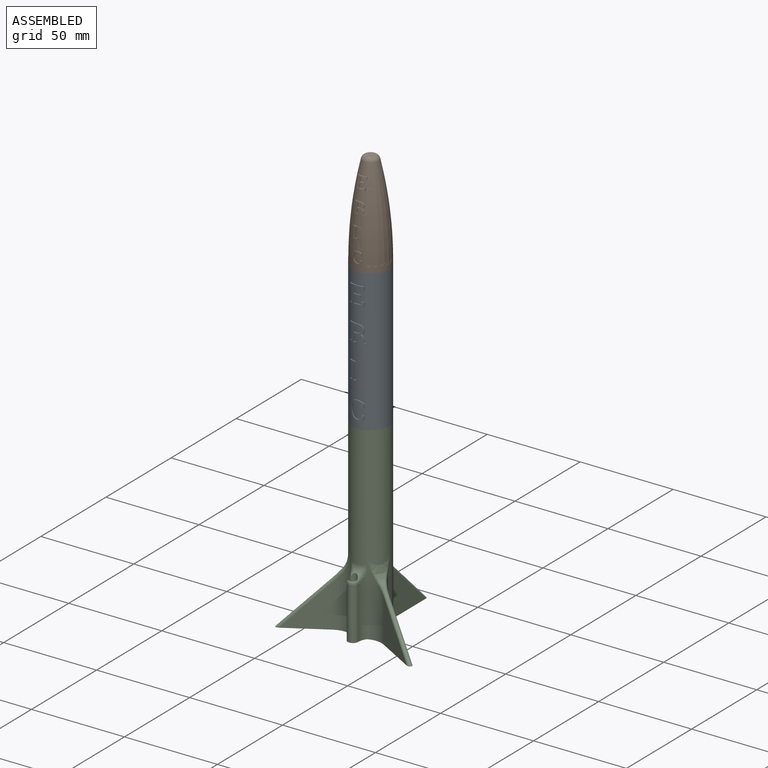
[diagram: assembled view]
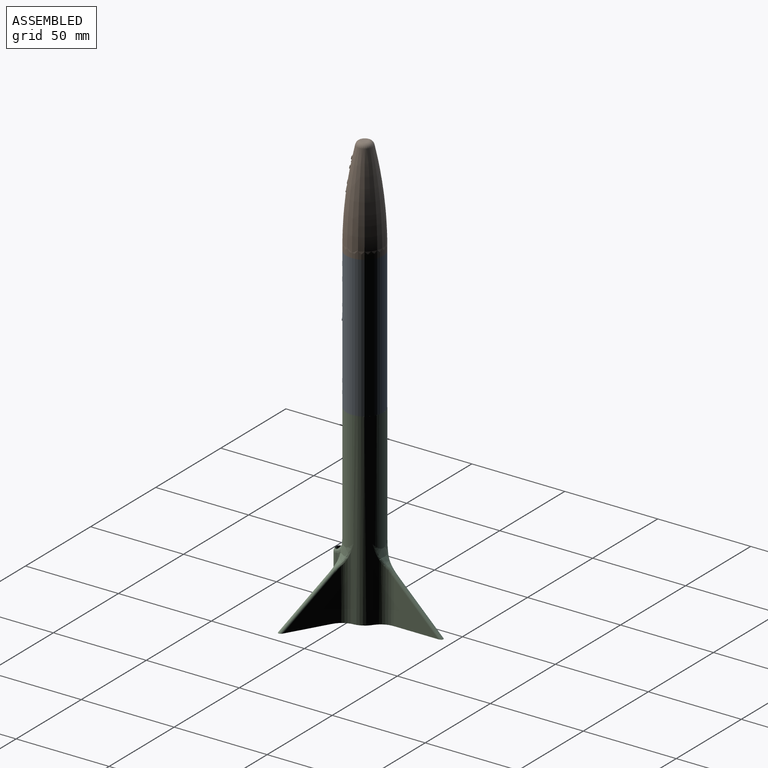
[diagram: assembled view, second angle]
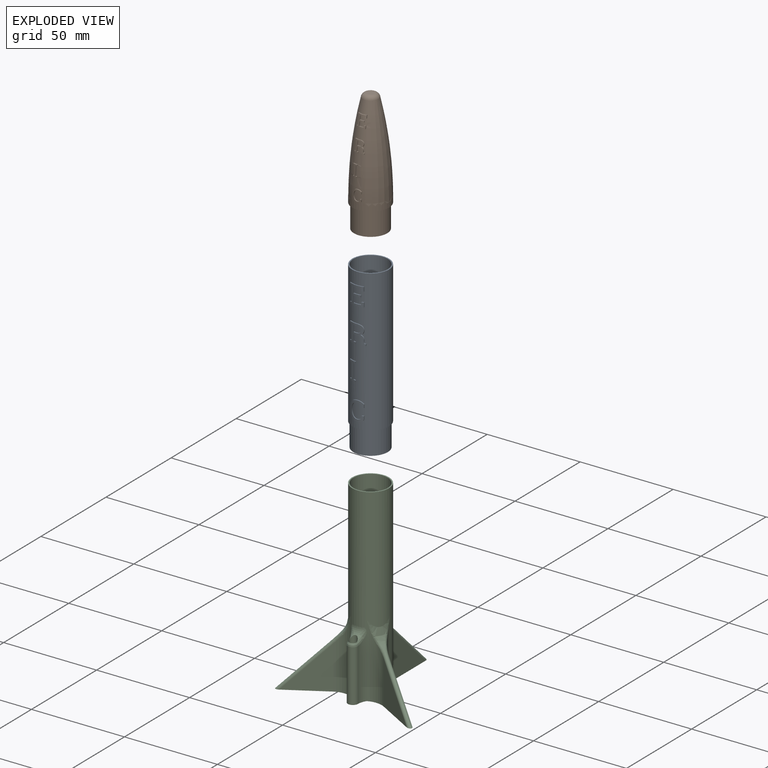
[diagram: exploded view]
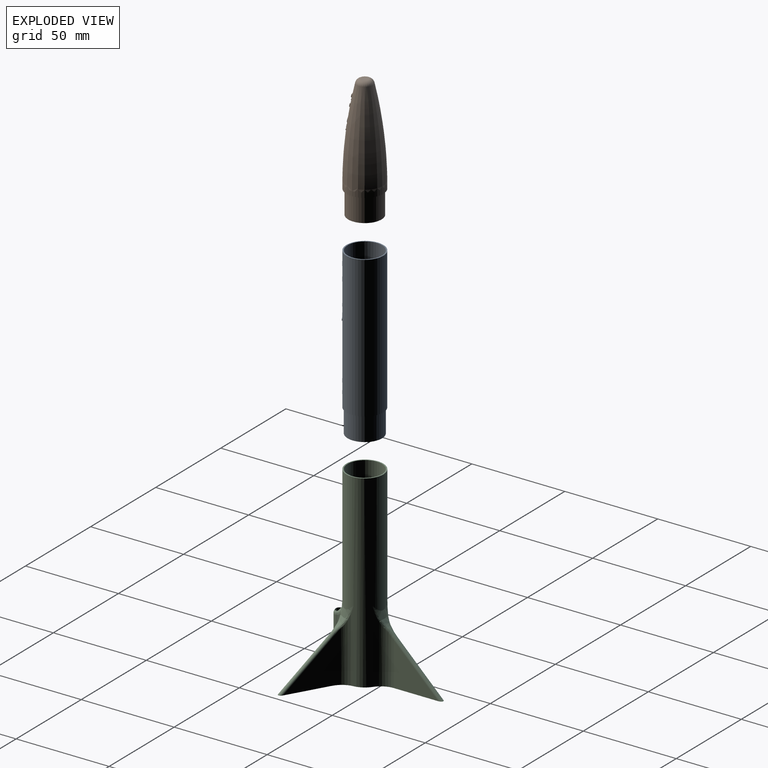
[diagram: exploded view, second angle]
ASSEMBLY  parts=3 mates=2
PART A: 124 faces, bbox 20x20.3x88.9 mm
  f0: cylinder r=8.47mm len=19.05mm, axis (0,0,1), area 999.5mm2, adj f6,f7,f115,f116,f117,f118,f119
  f1: cylinder r=9.92mm len=76.2mm, axis (0,0,-1), area 4615.8mm2, adj f2,f3,f15,f16,f17,f18,f19,f20
  f2: plane 19.84x19.84mm, normal (0,0,1), area 38.3mm2, adj f1,f123
  f3: plane 19.84x19.84mm, normal (0,0,-1), area 38.3mm2, adj f1,f4
  f4: cylinder r=9.28mm len=18.57mm, axis (0,0,1), area 740.8mm2, adj f3,f6
  f5: cylinder r=8.47mm len=4.84mm, axis (0,0,1), area 6mm2, adj f7,f110,f114,f120,f121,f122
  f6: plane 18.57x18.57mm, normal (0,0,-1), area 45.3mm2, adj f0,f4
  f7: torus R=4.2mm, axis (0,0,-1), area 159.9mm2, adj f0,f5,f110,f111,f112,f113,f114,f115
  f8: cylinder r=4.19mm len=26.67mm, axis (0,0,1), area 247mm2, adj f10,f11,f12,f13,f123
  f9: cylinder r=1.65mm len=23.93mm, axis (0,0,1), area 216.3mm2, adj f12,f13
  f10: plane 2.66x0.38mm, normal (0,0,-1), area 0.7mm2, adj f8,f13
  f11: plane 2.66x0.38mm, normal (0,0,1), area 0.7mm2, adj f8,f12
  f12: torus R=5.47mm, axis (0,0,1), area 31mm2, adj f8,f9,f11,f123
  f13: torus R=5.47mm, axis (0,0,1), area 31mm2, adj f8,f9,f10,f123
  f14: cylinder r=9.92mm len=10.03mm, axis (0,0,-1), area 35.4mm2, adj f15,f16,f17,f18,f19,f20,f21,f22
  f15: plane 2.41x0.51mm, normal (1,0,0), area 1.2mm2, adj f1,f14,f33,f34
  f16: plane 3.59x0.51mm, normal (1,0,0), area 1.8mm2, adj f1,f14,f30,f31
  f17: plane 1.07x0.51mm, normal (1,0,0), area 0.5mm2, adj f1,f14,f29,f30
  f18: plane 3.25x0.51mm, normal (1,0,0), area 1.6mm2, adj f1,f14,f28,f29
  f19: plane 2.41x0.51mm, normal (1,0,0), area 1.2mm2, adj f1,f14,f25,f26
  f20: plane 0.88x0.51mm, normal (-1,0,0), area 0.4mm2, adj f1,f14,f24,f25
  f21: plane 7.9x0.51mm, normal (-1,0,0), area 4mm2, adj f1,f14,f23,f24
  f22: plane 0.87x0.51mm, normal (-1,0,0), area 0.4mm2, adj f1,f14,f23,f34
  f23: plane 1.12x1mm, normal (-0.17,0,0.99), area 0.6mm2, adj f1,f14,f21,f22
  f24: plane 1.12x1mm, normal (-0.17,0,-0.99), area 0.6mm2, adj f1,f14,f20,f21
  f25: plane 7.7x1.58mm, normal (0,0,1), area 3.9mm2, adj f1,f14,f19,f20
  f26: plane 1.16x0.83mm, normal (0,0,-1), area 0.6mm2, adj f1,f14,f19,f27
  f27: plane 1.35x0.53mm, normal (-1,0,-0.08), area 0.7mm2, adj f1,f14,f26,f28
  f28: plane 3.95x0.71mm, normal (0,0,-1), area 2mm2, adj f1,f14,f18,f27
  f29: plane 3.84x0.71mm, normal (0,0,1), area 2mm2, adj f1,f14,f17,f18
  f30: plane 3.84x0.71mm, normal (0,0,-1), area 2mm2, adj f1,f14,f16,f17
  f31: plane 4.03x0.72mm, normal (0,0,1), area 2mm2, adj f1,f14,f16,f32
  f32: plane 1.35x0.53mm, normal (-1,0,0.08), area 0.7mm2, adj f1,f14,f31,f33
  f33: plane 1.16x0.84mm, normal (0,0,1), area 0.6mm2, adj f1,f14,f15,f32
  f34: plane 7.78x1.58mm, normal (0,0,-1), area 4mm2, adj f1,f14,f15,f22
  f35: plane 0.87x0.51mm, normal (-1,0,0), area 0.4mm2, adj f1,f61,f62,f63
  f36: plane 7.9x0.51mm, normal (-1,0,0), area 4mm2, adj f1,f60,f61,f63
  f37: plane 0.87x0.51mm, normal (-1,0,0), area 0.4mm2, adj f1,f59,f60,f63
  f38: plane 0.87x0.51mm, normal (1,0,0), area 0.4mm2, adj f1,f58,f59,f63
  f39: plane 3.42x0.51mm, normal (1,0,0), area 1.7mm2, adj f1,f57,f58,f63
  f40: extruded ~1.13x0.84mm, area 0.7mm2, adj f1,f41,f56,f63
  f41: extruded ~1.34x0.58mm, area 0.7mm2, adj f1,f40,f42,f63
  f42: plane 0.78x0.51mm, normal (-1,0,0), area 0.4mm2, adj f1,f41,f43,f63
  f43: extruded ~1.32x0.59mm, area 0.7mm2, adj f1,f42,f44,f63
  f44: extruded ~1.28x0.61mm, area 0.7mm2, adj f1,f43,f57,f63
  f45: plane 0.89x0.51mm, normal (1,0,0), area 0.5mm2, adj f1,f55,f56,f63
  f46: extruded ~2.07x0.87mm, area 1.2mm2, adj f1,f47,f54,f63
  f47: extruded ~1.29x0.64mm, area 0.7mm2, adj f1,f46,f48,f63
  f48: extruded ~1.16x0.89mm, area 0.8mm2, adj f1,f47,f49,f63
  f49: extruded ~1.18x0.88mm, area 0.8mm2, adj f1,f48,f50,f63
  f50: extruded ~1.5x0.63mm, area 0.8mm2, adj f1,f49,f51,f63
  f51: plane 0.81x0.51mm, normal (1,0,0), area 0.4mm2, adj f1,f50,f52,f63
  f52: extruded ~0.68x0.55mm, area 0.4mm2, adj f1,f51,f53,f63
  f53: extruded ~0.66x0.39mm, area 0.2mm2, adj f1,f52,f55,f63
  f54: extruded ~2.51x0.81mm, area 1.4mm2, adj f1,f46,f62,f63
  f55: plane 0.65x0.33mm, normal (0.13,0,0.99), area 0.2mm2, adj f1,f45,f53,f63
  f56: plane 0.81x0.73mm, normal (0,0,-1), area 0.4mm2, adj f1,f40,f45,f63
  f57: plane 2.18x0.71mm, normal (0,0,-1), area 1.1mm2, adj f1,f39,f44,f63
  f58: plane 1.12x0.68mm, normal (0.17,0,0.99), area 0.6mm2, adj f1,f38,f39,f63
  f59: plane 3.6x1.54mm, normal (0,0,-1), area 1.8mm2, adj f1,f37,f38,f63
  f60: plane 1.12x1mm, normal (-0.17,0,0.99), area 0.6mm2, adj f1,f36,f37,f63
  f61: plane 1.12x1mm, normal (-0.17,0,-0.99), area 0.6mm2, adj f1,f35,f36,f63
  f62: plane 4.4x1.58mm, normal (0,0,1), area 2.2mm2, adj f1,f35,f54,f63
  f63: cylinder r=9.92mm len=10.03mm, axis (0,0,-1), area 39mm2, adj f35,f36,f37,f38,f39,f40,f41,f42
  f64: plane 3.42x0.51mm, normal (1,0,0), area 1.7mm2, adj f63,f69,f70,f71
  f65: extruded ~1.65x0.61mm, area 0.9mm2, adj f63,f66,f70,f71
  f66: extruded ~1.27x0.6mm, area 0.7mm2, adj f63,f65,f67,f71
  f67: extruded ~1.25x0.59mm, area 0.7mm2, adj f63,f66,f68,f71
  f68: extruded ~1.54x0.61mm, area 0.8mm2, adj f63,f67,f69,f71
  f69: plane 1.92x0.71mm, normal (0,0,-1), area 1mm2, adj f63,f64,f68,f71
  f70: plane 1.78x0.71mm, normal (0,0,1), area 0.9mm2, adj f63,f64,f65,f71
  f71: cylinder r=9.92mm len=3.96mm, axis (0,0,-1), area 11.8mm2, adj f64,f65,f66,f67,f68,f69,f70
  f72: cylinder r=9.92mm len=10.03mm, axis (0,0,-1), area 18.7mm2, adj f73,f74,f75,f76,f77,f78,f79,f80
  f73: plane 7.9x0.51mm, normal (-1,0,0), area 4mm2, adj f1,f72,f83,f84
  f74: plane 0.87x0.51mm, normal (-1,0,0), area 0.4mm2, adj f1,f72,f82,f83
  f75: plane 0.87x0.51mm, normal (1,0,0), area 0.4mm2, adj f1,f72,f81,f82
  f76: plane 7.9x0.51mm, normal (1,0,0), area 4mm2, adj f1,f72,f80,f81
  f77: plane 0.88x0.51mm, normal (1,0,0), area 0.4mm2, adj f1,f72,f79,f80
  f78: plane 0.88x0.51mm, normal (-1,0,0), area 0.4mm2, adj f1,f72,f79,f84
  f79: plane 3.6x1.55mm, normal (0,0,1), area 1.8mm2, adj f1,f72,f77,f78
  f80: plane 1.12x0.68mm, normal (0.17,0,-0.99), area 0.6mm2, adj f1,f72,f76,f77
  f81: plane 1.12x0.68mm, normal (0.17,0,0.99), area 0.6mm2, adj f1,f72,f75,f76
  f82: plane 3.6x1.55mm, normal (0,0,-1), area 1.8mm2, adj f1,f72,f74,f75
  f83: plane 1.12x1mm, normal (-0.17,0,0.99), area 0.6mm2, adj f1,f72,f73,f74
  f84: plane 1.12x1mm, normal (-0.17,0,-0.99), area 0.6mm2, adj f1,f72,f73,f78
  f85: plane 1.79x0.51mm, normal (1,0,0), area 0.9mm2, adj f1,f86,f107,f108
  f86: extruded ~1.3x1mm, area 0.8mm2, adj f1,f85,f87,f107
  f87: extruded ~2.01x0.71mm, area 1.1mm2, adj f1,f86,f88,f107
  f88: extruded ~3.23x1.44mm, area 1.9mm2, adj f1,f87,f100,f107
  f89: extruded ~2.4x1.13mm, area 1.4mm2, adj f1,f90,f106,f107
  f90: extruded ~1.15x0.59mm, area 0.6mm2, adj f1,f89,f91,f107
  f91: extruded ~0.81x0.65mm, area 0.5mm2, adj f1,f90,f107,f109
  f92: extruded ~3.21x1.45mm, area 1.8mm2, adj f1,f93,f102,f107
  f93: extruded ~2.01x0.71mm, area 1.1mm2, adj f1,f92,f94,f107
  f94: extruded ~1.3x1mm, area 0.8mm2, adj f1,f93,f103,f107
  f95: extruded ~0.86x0.65mm, area 0.5mm2, adj f1,f96,f99,f107
  f96: extruded ~1.24x0.58mm, area 0.6mm2, adj f1,f95,f97,f107
  f97: extruded ~2.28x1.14mm, area 1.4mm2, adj f1,f96,f104,f107
  f98: plane 0.96x0.79mm, normal (0,0,1), area 0.5mm2, adj f1,f99,f103,f107
  f99: plane 1.42x0.57mm, normal (-0.98,0,0.18), area 0.7mm2, adj f1,f95,f98,f107
  f100: extruded ~3.65x1.23mm, area 2mm2, adj f1,f88,f101,f107
  f101: plane 0.51x0.14mm, normal (-1,0,0), area 0.1mm2, adj f1,f100,f102,f107
  f102: extruded ~3.64x1.25mm, area 2mm2, adj f1,f92,f101,f107
  f103: plane 1.79x0.51mm, normal (1,0,0), area 0.9mm2, adj f1,f94,f98,f107
  f104: extruded ~2.88x0.82mm, area 1.5mm2, adj f1,f97,f105,f107
  f105: plane 0.51x0.16mm, normal (1,0,0), area 0.1mm2, adj f1,f104,f106,f107
  f106: extruded ~2.88x0.84mm, area 1.5mm2, adj f1,f89,f105,f107
  f107: cylinder r=9.92mm len=10.32mm, axis (0,0,-1), area 27.6mm2, adj f85,f86,f87,f88,f89,f90,f91,f92
  f108: plane 0.96x0.79mm, normal (0,0,-1), area 0.5mm2, adj f1,f85,f107,f109
  f109: plane 1.42x0.57mm, normal (-0.98,0,-0.18), area 0.7mm2, adj f1,f91,f107,f108
  f110: extruded ~2.88x0.93mm, area 1.3mm2, adj f5,f7,f113,f122,f123
  f111: plane 0.96x0.85mm, normal (0,0,-1), area 0.5mm2, adj f7,f114,f119,f123
  f112: plane 0.14x0.01mm, normal (1,0,0), area 0mm2, adj f7,f115,f123
  f113: plane 0.16x0.01mm, normal (-1,0,0), area 0mm2, adj f7,f110,f123
  f114: plane 1.42x0.88mm, normal (0.98,0,-0.18), area 1.1mm2, adj f5,f7,f111,f120,f123
  f115: extruded ~3.64x1.25mm, area 2.2mm2, adj f0,f7,f112,f116,f123
  f116: extruded ~3.21x1.46mm, area 3.1mm2, adj f0,f115,f117,f123
  f117: extruded ~2.01x1.05mm, area 1.7mm2, adj f0,f116,f118,f123
  f118: extruded ~1.3x1.26mm, area 1.4mm2, adj f0,f117,f119,f123
  f119: plane 1.79x0.88mm, normal (-1,0,0), area 1.5mm2, adj f0,f7,f111,f118,f123
  f120: extruded ~0.99x0.86mm, area 0.8mm2, adj f5,f114,f121,f123
  f121: extruded ~1.24x0.9mm, area 1mm2, adj f5,f120,f122,f123
  f122: extruded ~2.28x1.14mm, area 2.2mm2, adj f5,f110,f121,f123
  f123: cylinder r=9.28mm len=72.54mm, axis (0,0,-1), area 3702.3mm2, adj f2,f7,f8,f12,f13,f110,f111,f112
PART B: 114 faces, bbox 19.9x20.4x66.1 mm
  f0: revolved ~48.84x19.84mm, area 2435.8mm2, adj f12,f16,f18,f19,f20,f21,f22,f23
  f1: plane 17.3x17.3mm, normal (0,0,1), area 16.3mm2, adj f3,f113
  f2: cylinder r=8.98mm len=17.96mm, axis (0,0,-1), area 716.5mm2, adj f4,f13
  f3: cylinder r=8.34mm len=16.69mm, axis (0,0,-1), area 721.1mm2, adj f1,f4,f7,f8,f9,f10,f11
  f4: plane 17.96x17.96mm, normal (0,0,-1), area 79.4mm2, adj f2,f3,f5,f6,f8,f9,f10,f11
  f5: plane 13.2x6.35mm, normal (0,-1,0), area 83.8mm2, adj f4,f7,f8,f11
  f6: plane 13.2x6.35mm, normal (0,1,0), area 83.8mm2, adj f4,f7,f9,f10
  f7: plane 16.69x5.99mm, normal (0,0,1), area 44.9mm2, adj f3,f5,f6,f8,f9,f10,f11
  f8: cylinder r=1.27mm len=6.35mm, axis (0,0,-1), area 15.6mm2, adj f3,f4,f5,f7
  f9: cylinder r=1.27mm len=6.35mm, axis (0,0,-1), area 15.6mm2, adj f3,f4,f6,f7
  f10: cylinder r=1.27mm len=6.35mm, axis (0,0,-1), area 15.6mm2, adj f3,f4,f6,f7
  f11: cylinder r=1.27mm len=6.35mm, axis (0,0,-1), area 15.6mm2, adj f3,f4,f5,f7
  f12: cylinder r=9.92mm len=19.84mm, axis (0,0,1), area 158.3mm2, adj f0,f13
  f13: plane 19.84x19.84mm, normal (0,0,-1), area 55.8mm2, adj f2,f12
  f14: plane 5.62x5.62mm, normal (0,0,-1), area 24.8mm2, adj f113
  f15: plane 3.61x3.61mm, normal (0,0,1), area 10.2mm2, adj f16
  f16: torus R=1.81mm, axis (0,0,-1), area 69.9mm2, adj f0,f15
  f17: revolved ~6.27x5.81mm, area 14.1mm2, adj f18,f19,f20,f21,f22,f23,f24,f25
  f18: plane 1.51x0.79mm, normal (1,0,0), area 0.8mm2, adj f0,f17,f36,f37
  f19: plane 0.84x0.67mm, normal (-1,0,0.08), area 0.4mm2, adj f0,f17,f35,f36
  f20: plane 2.25x0.92mm, normal (1,0,0), area 1.1mm2, adj f0,f17,f34,f35
  f21: plane 0.67x0.64mm, normal (1,0,0), area 0.3mm2, adj f0,f17,f33,f34
  f22: plane 2.03x0.91mm, normal (1,0,0), area 1mm2, adj f0,f17,f32,f33
  f23: plane 0.84x0.66mm, normal (-1,0,-0.08), area 0.4mm2, adj f0,f17,f31,f32
  f24: plane 1.51x0.83mm, normal (1,0,0), area 0.8mm2, adj f0,f17,f30,f31
  f25: plane 0.76x0.7mm, normal (-0.17,0,0.99), area 0.4mm2, adj f0,f17,f26,f29
  f26: plane 4.98x1.52mm, normal (-1,0,0), area 2.5mm2, adj f0,f17,f25,f27
  f27: plane 0.87x0.7mm, normal (-0.17,0,-0.99), area 0.4mm2, adj f0,f17,f26,f28
  f28: plane 0.63x0.55mm, normal (-1,0,0), area 0.3mm2, adj f0,f17,f27,f30
  f29: plane 0.61x0.54mm, normal (-1,0,0), area 0.3mm2, adj f0,f17,f25,f37
  f30: plane 4.82x1.25mm, normal (0,0,1), area 2.4mm2, adj f0,f17,f24,f28
  f31: plane 0.73x0.72mm, normal (0,0,-1), area 0.4mm2, adj f0,f17,f23,f24
  f32: plane 2.47x0.65mm, normal (0,0,-1), area 1.3mm2, adj f0,f17,f22,f23
  f33: plane 2.4x0.64mm, normal (0,0,1), area 1.2mm2, adj f0,f17,f21,f22
  f34: plane 2.4x0.63mm, normal (0,0,-1), area 1.2mm2, adj f0,f17,f20,f21
  f35: plane 2.52x0.63mm, normal (0,0,1), area 1.3mm2, adj f0,f17,f19,f20
  f36: plane 0.72x0.7mm, normal (0,0,1), area 0.4mm2, adj f0,f17,f18,f19
  f37: plane 4.86x1.11mm, normal (0,0,-1), area 2.5mm2, adj f0,f17,f18,f29
  f38: plane 0.58x0.54mm, normal (-1,0,0), area 0.3mm2, adj f0,f39,f64,f66
  f39: plane 0.71x0.7mm, normal (-0.17,0,0.99), area 0.4mm2, adj f0,f38,f40,f66
  f40: plane 4.96x1.19mm, normal (-1,0,0), area 2.5mm2, adj f0,f39,f41,f66
  f41: plane 0.76x0.7mm, normal (-0.17,0,-0.99), area 0.4mm2, adj f0,f40,f42,f66
  f42: plane 0.59x0.54mm, normal (-1,0,0), area 0.3mm2, adj f0,f41,f65,f66
  f43: plane 2.14x0.78mm, normal (1,0,0), area 1.1mm2, adj f0,f44,f63,f66
  f44: plane 0.7x0.6mm, normal (0.17,0,0.99), area 0.4mm2, adj f0,f43,f45,f66
  f45: plane 0.57x0.54mm, normal (1,0,0), area 0.3mm2, adj f0,f44,f64,f66
  f46: extruded ~0.71x0.62mm, area 0.4mm2, adj f0,f47,f62,f66
  f47: extruded ~0.84x0.58mm, area 0.4mm2, adj f0,f46,f48,f66
  f48: plane 0.57x0.49mm, normal (-1,0,0), area 0.2mm2, adj f0,f47,f49,f66
  f49: extruded ~0.82x0.57mm, area 0.5mm2, adj f0,f48,f50,f66
  f50: extruded ~0.8x0.52mm, area 0.4mm2, adj f0,f49,f63,f66
  f51: extruded ~1.29x0.57mm, area 0.7mm2, adj f0,f52,f61,f66
  f52: extruded ~0.81x0.68mm, area 0.4mm2, adj f0,f51,f53,f66
  f53: extruded ~0.73x0.71mm, area 0.5mm2, adj f0,f52,f54,f66
  f54: extruded ~0.74x0.57mm, area 0.5mm2, adj f0,f53,f55,f66
  f55: extruded ~0.93x0.57mm, area 0.5mm2, adj f0,f54,f56,f66
  f56: plane 0.57x0.5mm, normal (1,0,0), area 0.3mm2, adj f0,f55,f57,f66
  f57: extruded ~0.54x0.43mm, area 0.2mm2, adj f0,f56,f58,f66
  f58: extruded ~0.55x0.24mm, area 0.2mm2, adj f0,f57,f59,f66
  f59: plane 0.57x0.21mm, normal (0.13,0,0.99), area 0.1mm2, adj f0,f58,f60,f66
  f60: plane 0.58x0.56mm, normal (1,0,0), area 0.3mm2, adj f0,f59,f62,f66
  f61: extruded ~1.57x0.59mm, area 0.8mm2, adj f0,f51,f65,f66
  f62: plane 0.64x0.46mm, normal (0,0,-1), area 0.2mm2, adj f0,f46,f60,f66
  f63: plane 1.36x0.61mm, normal (0,0,-1), area 0.7mm2, adj f0,f43,f50,f66
  f64: plane 2.25x0.97mm, normal (0,0,-1), area 1.1mm2, adj f0,f38,f45,f66
  f65: plane 2.75x1.04mm, normal (0,0,1), area 1.4mm2, adj f0,f42,f61,f66
  f66: revolved ~6.27x5.69mm, area 15.2mm2, adj f38,f39,f40,f41,f42,f43,f44,f45
  f67: plane 2.14x0.81mm, normal (1,0,0), area 1.1mm2, adj f66,f72,f73,f74
  f68: extruded ~1.03x0.59mm, area 0.6mm2, adj f66,f69,f73,f74
  f69: extruded ~0.79x0.66mm, area 0.5mm2, adj f66,f68,f70,f74
  f70: extruded ~0.78x0.58mm, area 0.4mm2, adj f66,f69,f71,f74
  f71: extruded ~0.96x0.52mm, area 0.5mm2, adj f66,f70,f72,f74
  f72: plane 1.2x0.61mm, normal (0,0,-1), area 0.6mm2, adj f66,f67,f71,f74
  f73: plane 1.12x0.61mm, normal (0,0,1), area 0.6mm2, adj f66,f67,f68,f74
  f74: revolved ~2.54x2.14mm, area 4.7mm2, adj f67,f68,f69,f70,f71,f72,f73
  f75: revolved ~6.27x2.43mm, area 7.2mm2, adj f76,f77,f78,f79,f80,f81,f82,f83
  f76: plane 0.56x0.55mm, normal (1,0,0), area 0.3mm2, adj f0,f75,f77,f86
  f77: plane 0.7x0.57mm, normal (0.17,0,-0.99), area 0.4mm2, adj f0,f75,f76,f78
  f78: plane 4.95x0.89mm, normal (1,0,0), area 2.5mm2, adj f0,f75,f77,f79
  f79: plane 0.7x0.58mm, normal (0.17,0,0.99), area 0.4mm2, adj f0,f75,f78,f80
  f80: plane 0.54x0.54mm, normal (1,0,0), area 0.3mm2, adj f0,f75,f79,f87
  f81: plane 0.54x0.54mm, normal (-1,0,0), area 0.3mm2, adj f0,f75,f82,f87
  f82: plane 0.7x0.69mm, normal (-0.17,0,0.99), area 0.4mm2, adj f0,f75,f81,f83
  f83: plane 4.95x0.9mm, normal (-1,0,0), area 2.5mm2, adj f0,f75,f82,f84
  f84: plane 0.72x0.7mm, normal (-0.17,0,-0.99), area 0.4mm2, adj f0,f75,f83,f85
  f85: plane 0.56x0.55mm, normal (-1,0,0), area 0.3mm2, adj f0,f75,f84,f86
  f86: plane 2.25x0.94mm, normal (0,0,1), area 1.1mm2, adj f0,f75,f76,f85
  f87: plane 2.25x0.92mm, normal (0,0,-1), area 1.1mm2, adj f0,f75,f80,f81
  f88: revolved ~6.45x4.9mm, area 10.5mm2, adj f89,f90,f91,f92,f93,f94,f95,f96
  f89: plane 1.12x0.52mm, normal (1,0,0), area 0.6mm2, adj f0,f88,f90,f111
  f90: extruded ~0.81x0.65mm, area 0.5mm2, adj f0,f88,f89,f91
  f91: extruded ~1.26x0.59mm, area 0.7mm2, adj f0,f88,f90,f92
  f92: extruded ~2.01x0.9mm, area 1.2mm2, adj f0,f88,f91,f93
  f93: extruded ~2.27x0.78mm, area 1.2mm2, adj f0,f88,f92,f94
  f94: plane 0.51x0.09mm, normal (-1,0,0), area 0mm2, adj f0,f88,f93,f95
  f95: extruded ~2.28x0.77mm, area 1.2mm2, adj f0,f88,f94,f96
  f96: extruded ~2.02x0.9mm, area 1.2mm2, adj f0,f88,f95,f97
  f97: extruded ~1.26x0.58mm, area 0.7mm2, adj f0,f88,f96,f98
  f98: extruded ~0.81x0.63mm, area 0.5mm2, adj f0,f88,f97,f99
  f99: plane 1.12x0.54mm, normal (1,0,0), area 0.6mm2, adj f0,f88,f98,f112
  f100: plane 0.89x0.51mm, normal (-0.98,0,-0.18), area 0.5mm2, adj f0,f88,f101,f112
  f101: extruded ~0.55x0.51mm, area 0.3mm2, adj f0,f88,f100,f102
  f102: extruded ~0.72x0.54mm, area 0.4mm2, adj f0,f88,f101,f103
  f103: extruded ~1.5x0.71mm, area 0.9mm2, adj f0,f88,f102,f104
  f104: extruded ~1.8x0.55mm, area 1mm2, adj f0,f88,f103,f105
  f105: plane 0.51x0.1mm, normal (1,0,0), area 0.1mm2, adj f0,f88,f104,f106
  f106: extruded ~1.8x0.63mm, area 1mm2, adj f0,f88,f105,f107
  f107: extruded ~1.43x0.71mm, area 0.8mm2, adj f0,f88,f106,f108
  f108: extruded ~0.78x0.54mm, area 0.4mm2, adj f0,f88,f107,f109
  f109: extruded ~0.57x0.54mm, area 0.3mm2, adj f0,f88,f108,f110
  f110: plane 0.89x0.54mm, normal (-0.98,0,0.18), area 0.5mm2, adj f0,f88,f109,f111
  f111: plane 0.62x0.6mm, normal (0,0,1), area 0.3mm2, adj f0,f88,f89,f110
  f112: plane 0.62x0.6mm, normal (0,0,-1), area 0.3mm2, adj f0,f88,f99,f100
  f113: revolved ~49.53x17.3mm, area 2104mm2, adj f1,f14
PART C: 132 faces, bbox 73.6x64.1x102.5 mm
  f0: cylinder r=9.28mm len=18.57mm, axis (0,0,-1), area 889mm2, adj f3,f47
  f1: cylinder r=9.28mm len=73.66mm, axis (0,0,-1), area 4288.1mm2, adj f4,f48,f49,f50
  f2: cylinder r=9.92mm len=101.6mm, axis (0,0,-1), area 4692mm2, adj f3,f4,f8,f9,f10,f19,f20,f21
  f3: plane 19.84x19.84mm, normal (0,0,1), area 38.3mm2, adj f0,f2
  f4: plane 73.42x63.89mm, normal (0,0,-1), area 344.5mm2, adj f1,f2,f5,f6,f8,f9,f13,f16
  f5: plane 23.92x23.26mm, normal (1,0,0), area 278.2mm2, adj f4,f9,f13
  f6: plane 23.92x23.26mm, normal (-1,0,0), area 250.2mm2, adj f4,f8,f13,f51,f52,f53,f54,f55
  f7: plane 4.42x4.3mm, normal (0,0.7,0.72), area 3.6mm2, adj f10,f12,f14
  f8: cylinder r=10.16mm len=39.21mm, axis (0,0,-1), area 295.2mm2, adj f2,f4,f6,f14,f15
  f9: cylinder r=10.16mm len=39.21mm, axis (0,0,-1), area 295.2mm2, adj f2,f4,f5,f11,f12
  f10: bspline ~22.86x10.76mm, area 51mm2, adj f2,f7,f11,f15
  f11: bspline ~13.02x6.51mm, area 7.2mm2, adj f9,f10,f12
  f12: bspline ~5.21x4.81mm, area 11mm2, adj f7,f9,f11,f13
  f13: cylinder r=1.27mm len=25.74mm, axis (0,0.72,-0.7), area 136.4mm2, adj f4,f5,f6,f12,f14
  f14: bspline ~8.82x8.34mm, area 11mm2, adj f7,f8,f13,f15
  f15: bspline ~13.04x6.53mm, area 7.3mm2, adj f8,f10,f14
  f16: plane 23.26x20.71mm, normal (-0.5,-0.87,0), area 278.2mm2, adj f4,f21,f24
  f17: plane 4.3x4.27mm, normal (0.6,-0.35,0.72), area 3.6mm2, adj f20,f23,f25
  f18: plane 23.26x20.71mm, normal (0.5,0.87,0), area 278.2mm2, adj f4,f19,f24
  f19: cylinder r=10.16mm len=39.21mm, axis (0,0,-1), area 295.2mm2, adj f2,f4,f18,f25,f26
  f20: bspline ~19.8x11.58mm, area 51mm2, adj f2,f17,f22,f26
  f21: cylinder r=10.16mm len=39.21mm, axis (0,0,-1), area 295.2mm2, adj f2,f4,f16,f22,f23,f39
  f22: bspline ~12.99x8.09mm, area 7.2mm2, adj f20,f21,f23
  f23: bspline ~5.21x5.2mm, area 11mm2, adj f17,f21,f22,f24
  f24: cylinder r=1.27mm len=25.09mm, axis (0.62,-0.36,-0.7), area 136.4mm2, adj f4,f16,f18,f23,f25
  f25: bspline ~5.21x4.19mm, area 11mm2, adj f17,f19,f24,f26
  f26: bspline ~13.04x7.79mm, area 7.3mm2, adj f19,f20,f25
  f27: plane 23.26x20.71mm, normal (-0.5,0.87,0), area 278.2mm2, adj f4,f32,f35
  f28: plane 23.26x20.71mm, normal (0.5,-0.87,0), area 278.2mm2, adj f4,f30,f35
  f29: plane 4.3x4.27mm, normal (-0.6,-0.35,0.72), area 3.6mm2, adj f31,f34,f36
  f30: cylinder r=10.16mm len=39.21mm, axis (0,0,-1), area 295.2mm2, adj f2,f4,f28,f36,f37,f38
  f31: bspline ~19.8x11.58mm, area 51mm2, adj f2,f29,f33,f37
  f32: cylinder r=10.16mm len=39.21mm, axis (0,0,-1), area 295.2mm2, adj f2,f4,f27,f33,f34
  f33: bspline ~12.99x7.74mm, area 7.2mm2, adj f31,f32,f34
  f34: bspline ~5.21x4.19mm, area 11mm2, adj f29,f32,f33,f35
  f35: cylinder r=1.27mm len=25.09mm, axis (-0.62,-0.36,-0.7), area 136.4mm2, adj f4,f27,f28,f34,f36
  f36: bspline ~5.21x5.2mm, area 11mm2, adj f29,f30,f35,f37
  f37: bspline ~13.04x8.16mm, area 7.3mm2, adj f30,f31,f36
  f38: cylinder r=7.73mm len=33.12mm, axis (0,0,-1), area 149.7mm2, adj f4,f30,f40,f45
  f39: cylinder r=7.73mm len=33.12mm, axis (0,0,-1), area 149.7mm2, adj f4,f21,f40,f43
  f40: cylinder r=2.74mm len=28.08mm, axis (0,0,-1), area 242mm2, adj f4,f38,f39,f44
  f41: cylinder r=2.1mm len=31.93mm, axis (0,0,-1), area 400.6mm2, adj f4,f42,f43,f44,f45
  f42: torus R=15mm, axis (0,0,-1), area 20mm2, adj f2,f41,f43,f45
  f43: bspline ~8x6.43mm, area 18.5mm2, adj f2,f39,f41,f42,f44
  f44: bspline ~5.49x2.74mm, area 13.4mm2, adj f40,f41,f43,f45
  f45: bspline ~7.92x5.73mm, area 17.4mm2, adj f2,f38,f41,f42,f44
  f46: cylinder r=7.62mm len=15.24mm, axis (0,0,-1), area 608mm2, adj f47,f48
  f47: plane 18.57x18.57mm, normal (0,0,1), area 88.4mm2, adj f0,f46
  f48: plane 18.57x18.57mm, normal (0,0,-1), area 88.4mm2, adj f1,f46
  f49: cylinder r=2.54mm len=3.75mm, axis (0,0,-1), area 9.6mm2, adj f1,f4,f50
  f50: plane 3.75x1.02mm, normal (0,0,1), area 2.6mm2, adj f1,f49
  f51: plane 0.51x0.5mm, normal (0,1,0), area 0.3mm2, adj f6,f52,f70,f71
  f52: plane 4.44x0.51mm, normal (0,0,-1), area 2.3mm2, adj f6,f51,f53,f71
  f53: plane 1.37x0.51mm, normal (0,-1,0), area 0.7mm2, adj f6,f52,f54,f71
  f54: plane 0.66x0.51mm, normal (0,0,1), area 0.3mm2, adj f6,f53,f55,f71
  f55: plane 0.77x0.51mm, normal (0,1,0.08), area 0.4mm2, adj f6,f54,f56,f71
  f56: plane 2.3x0.51mm, normal (0,0,1), area 1.2mm2, adj f6,f55,f57,f71
  f57: plane 2.05x0.51mm, normal (0,-1,0), area 1mm2, adj f6,f56,f58,f71
  f58: plane 2.19x0.51mm, normal (0,0,-1), area 1.1mm2, adj f6,f57,f59,f71
  f59: plane 0.61x0.51mm, normal (0,-1,0), area 0.3mm2, adj f6,f58,f60,f71
  f60: plane 2.19x0.51mm, normal (0,0,1), area 1.1mm2, adj f6,f59,f61,f71
  f61: plane 1.85x0.51mm, normal (0,-1,0), area 0.9mm2, adj f6,f60,f62,f71
  f62: plane 2.25x0.51mm, normal (0,0,-1), area 1.1mm2, adj f6,f61,f63,f71
  f63: plane 0.77x0.51mm, normal (0,1,-0.08), area 0.4mm2, adj f6,f62,f64,f71
  f64: plane 0.66x0.51mm, normal (0,0,-1), area 0.3mm2, adj f6,f63,f65,f71
  f65: plane 1.38x0.51mm, normal (0,-1,0), area 0.7mm2, adj f6,f64,f66,f71
  f66: plane 4.4x0.51mm, normal (0,0,1), area 2.2mm2, adj f6,f65,f67,f71
  f67: plane 0.51x0.5mm, normal (0,1,0), area 0.3mm2, adj f6,f66,f68,f71
  f68: plane 0.64x0.51mm, normal (0,0.17,-0.99), area 0.3mm2, adj f6,f67,f69,f71
  f69: plane 4.51x0.51mm, normal (0,1,0), area 2.3mm2, adj f6,f68,f70,f71
  f70: plane 0.64x0.51mm, normal (0,0.17,0.99), area 0.3mm2, adj f6,f51,f69,f71
  f71: plane 5.73x4.44mm, normal (-1,0,0), area 11.2mm2, adj f51,f52,f53,f54,f55,f56,f57,f58
  f72: plane 0.51x0.5mm, normal (0,1,0), area 0.3mm2, adj f6,f73,f90,f91
  f73: plane 0.64x0.51mm, normal (0,0.17,-0.99), area 0.3mm2, adj f6,f72,f74,f91
  f74: plane 3.04x0.51mm, normal (0,1,0), area 1.5mm2, adj f6,f73,f75,f91
  f75: plane 0.64x0.51mm, normal (0,0.17,0.99), area 0.3mm2, adj f6,f74,f76,f91
  f76: plane 0.51x0.5mm, normal (0,1,0), area 0.3mm2, adj f6,f75,f77,f91
  f77: plane 2.06x0.51mm, normal (0,0,-1), area 1mm2, adj f6,f76,f78,f91
  f78: plane 0.51x0.5mm, normal (0,-1,0), area 0.3mm2, adj f6,f77,f79,f91
  f79: plane 0.64x0.51mm, normal (0,-0.17,0.99), area 0.3mm2, adj f6,f78,f80,f91
  f80: plane 2.44x0.51mm, normal (0,-1,0), area 1.2mm2, adj f6,f79,f81,f91
  f81: extruded ~0.51x0.4mm, area 0.3mm2, adj f6,f80,f82,f91
  f82: extruded ~0.52x0.51mm, area 0.3mm2, adj f6,f81,f83,f91
  f83: plane 0.51x0.44mm, normal (0,0.05,-1), area 0.2mm2, adj f6,f82,f84,f91
  f84: plane 0.72x0.51mm, normal (0,-0.99,-0.14), area 0.4mm2, adj f6,f83,f85,f91
  f85: extruded ~0.51x0.15mm, area 0.1mm2, adj f6,f84,f86,f91
  f86: extruded ~0.51x0.19mm, area 0.1mm2, adj f6,f85,f87,f91
  f87: extruded ~0.61x0.51mm, area 0.3mm2, adj f6,f86,f88,f91
  f88: extruded ~0.51x0.51mm, area 0.3mm2, adj f6,f87,f89,f91
  f89: plane 0.62x0.51mm, normal (0,-0.99,0.12), area 0.3mm2, adj f6,f88,f90,f91
  f90: plane 1.33x0.51mm, normal (0,0,1), area 0.7mm2, adj f6,f72,f89,f91
  f91: plane 4.34x2.8mm, normal (-1,0,0), area 5.2mm2, adj f72,f73,f74,f75,f76,f77,f78,f79
  f92: plane 0.64x0.51mm, normal (0,0.17,0.99), area 0.3mm2, adj f6,f93,f101,f102
  f93: plane 0.51x0.5mm, normal (0,1,0), area 0.3mm2, adj f6,f92,f94,f102
  f94: plane 2.06x0.51mm, normal (0,0,-1), area 1mm2, adj f6,f93,f95,f102
  f95: plane 0.51x0.5mm, normal (0,-1,0), area 0.3mm2, adj f6,f94,f96,f102
  f96: plane 0.64x0.51mm, normal (0,-0.17,0.99), area 0.3mm2, adj f6,f95,f97,f102
  f97: plane 3.65x0.51mm, normal (0,-1,0), area 1.9mm2, adj f6,f96,f98,f102
  f98: plane 1.42x0.51mm, normal (0,0,1), area 0.7mm2, adj f6,f97,f99,f102
  f99: plane 0.51x0.5mm, normal (0,1,0), area 0.3mm2, adj f6,f98,f100,f102
  f100: plane 0.64x0.51mm, normal (0,0.17,-0.99), area 0.3mm2, adj f6,f99,f101,f102
  f101: plane 3.04x0.51mm, normal (0,1,0), area 1.5mm2, adj f6,f92,f100,f102
  f102: plane 4.26x2.06mm, normal (-1,0,0), area 4.4mm2, adj f92,f93,f94,f95,f96,f97,f98,f99
  f103: plane 0.77x0.51mm, normal (0,0,-1), area 0.4mm2, adj f6,f104,f106,f107
  f104: plane 0.79x0.51mm, normal (0,-1,0), area 0.4mm2, adj f6,f103,f105,f107
  f105: plane 0.77x0.51mm, normal (0,0,1), area 0.4mm2, adj f6,f104,f106,f107
  f106: plane 0.79x0.51mm, normal (0,1,0), area 0.4mm2, adj f6,f103,f105,f107
  f107: plane 0.79x0.77mm, normal (-1,0,0), area 0.6mm2, adj f103,f104,f105,f106
  f108: extruded ~0.68x0.51mm, area 0.4mm2, adj f6,f109,f130,f131
  f109: extruded ~0.87x0.51mm, area 0.5mm2, adj f6,f108,f110,f131
  f110: extruded ~1.09x0.51mm, area 0.6mm2, adj f6,f109,f111,f131
  f111: plane 0.51x0.17mm, normal (0,-1,0), area 0.1mm2, adj f6,f110,f112,f131
  f112: extruded ~1.08x0.51mm, area 0.6mm2, adj f6,f111,f113,f131
  f113: extruded ~0.87x0.51mm, area 0.5mm2, adj f6,f112,f114,f131
  f114: extruded ~0.51x0.49mm, area 0.3mm2, adj f6,f113,f115,f131
  f115: extruded ~0.51x0.35mm, area 0.2mm2, adj f6,f114,f116,f131
  f116: plane 0.67x0.51mm, normal (0,0.97,-0.24), area 0.4mm2, adj f6,f115,f117,f131
  f117: plane 0.62x0.51mm, normal (0,0,-1), area 0.3mm2, adj f6,f116,f118,f131
  f118: plane 0.94x0.51mm, normal (0,-1,0.04), area 0.5mm2, adj f6,f117,f119,f131
  f119: extruded ~0.68x0.51mm, area 0.4mm2, adj f6,f118,f120,f131
  f120: extruded ~0.92x0.51mm, area 0.5mm2, adj f6,f119,f121,f131
  f121: extruded ~1.42x0.61mm, area 0.8mm2, adj f6,f120,f122,f131
  f122: extruded ~1.52x0.51mm, area 0.8mm2, adj f6,f121,f123,f131
  f123: plane 0.51x0.17mm, normal (0,1,0), area 0.1mm2, adj f6,f122,f124,f131
  f124: extruded ~1.52x0.51mm, area 0.8mm2, adj f6,f123,f125,f131
  f125: extruded ~1.42x0.61mm, area 0.8mm2, adj f6,f124,f126,f131
  f126: extruded ~1.19x0.51mm, area 0.7mm2, adj f6,f125,f127,f131
  f127: extruded ~0.98x0.51mm, area 0.6mm2, adj f6,f126,f128,f131
  f128: plane 0.51x0.02mm, normal (0,-0.95,0.3), area 0mm2, adj f6,f127,f129,f131
  f129: plane 0.7x0.51mm, normal (0,0,1), area 0.4mm2, adj f6,f128,f130,f131
  f130: extruded ~0.58x0.51mm, area 0.3mm2, adj f6,f108,f129,f131
  f131: plane 4.42x3.6mm, normal (-1,0,0), area 6.6mm2, adj f108,f109,f110,f111,f112,f113,f114,f115
PLACE A t=(-33.5,44.1,-1.84)mm
PLACE B t=(-33.5,44.1,61.66)mm
PLACE C t=(-33.5,44.1,-103.44)mm
MATE fastened C.f2 <-> A.f4  axis (0,0,1) through (-33.5,44.1,-1.84)mm
MATE fastened A.f4 <-> B.f2  axis (0,0,-1) through (-33.5,44.1,74.36)mm
